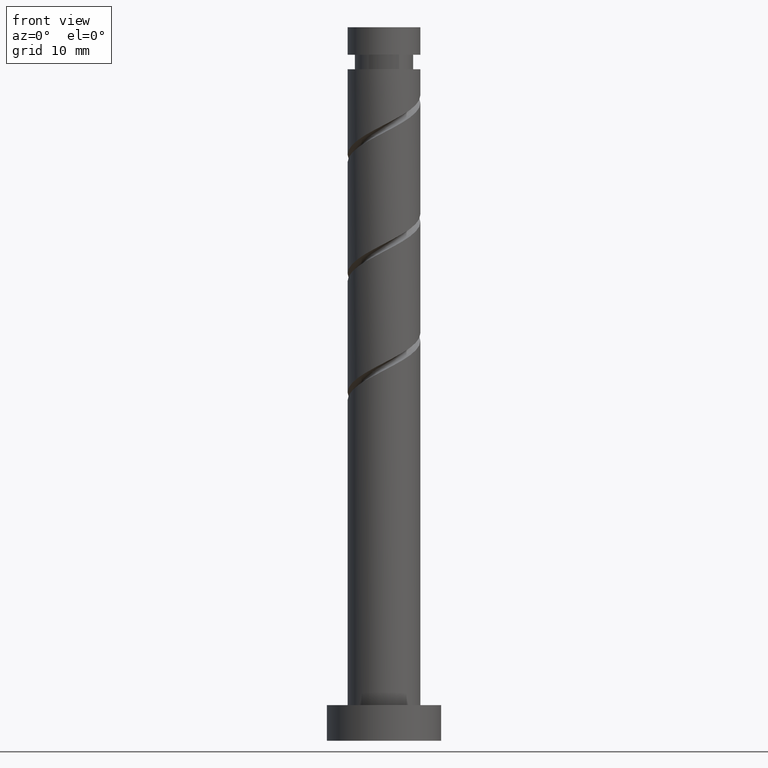
[diagram: clean part render]
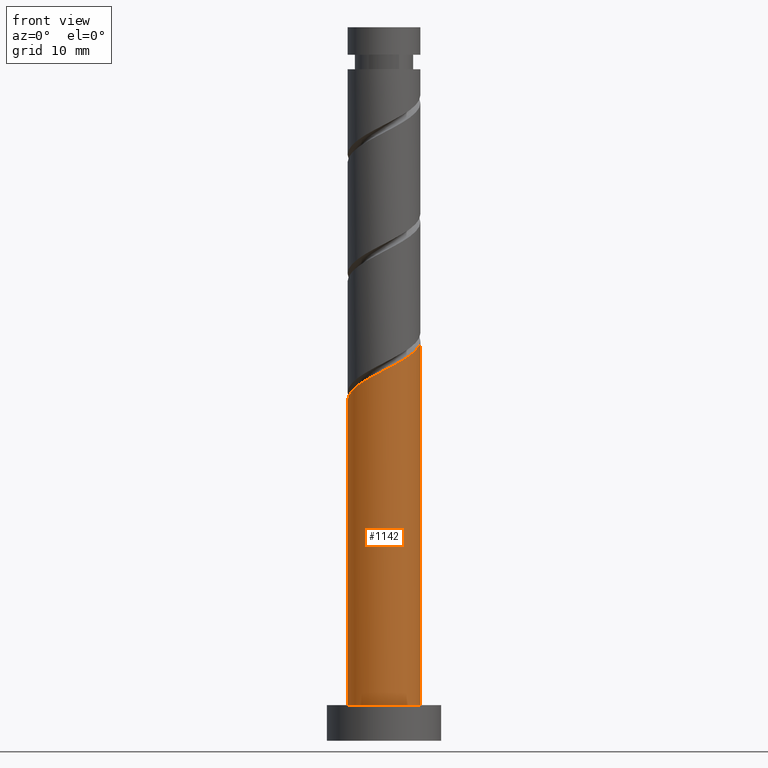
[diagram: same view with one face highlighted and labeled with its STEP entity id]
A machine part, front view. The second image highlights one B-rep face of the part: STEP entity #1142.
In plain terms, the highlighted cylindrical surface (edge-blend (fillet) strip) has radius 5.1 mm, axis along (-0, -0, -1).
Its self-contained STEP definition (entity closure, byte-faithful):
#18 = CARTESIAN_POINT ( 'NONE',  ( 5.099999999999999645, 6.245698675651500839E-16, 5.000000000000000000 ) ) ;
#70 = VECTOR ( 'NONE', #715, 1000.000000000000000 ) ;
#106 = CARTESIAN_POINT ( 'NONE',  ( -5.099999999999999645, 0.000000000000000000, 5.000000000000000000 ) ) ;
#108 = CARTESIAN_POINT ( 'NONE',  ( -5.100000000000006750, -0.06579853909330482531, 47.78180857407880211 ) ) ;
#113 = CARTESIAN_POINT ( 'NONE',  ( -1.645074290006732776, -4.910439165662275229, 51.05642386624632678 ) ) ;
#116 = CARTESIAN_POINT ( 'NONE',  ( -5.099999999999999645, 0.000000000000000000, 100.0000000000000000 ) ) ;
#120 = CARTESIAN_POINT ( 'NONE',  ( 4.835838561039003558, -1.620081915079686574, 55.22309053291296266 ) ) ;
#147 =( BOUNDED_CURVE ( )  B_SPLINE_CURVE ( 2, ( #808, #108, #904, #346, #332, #1253, #216, #1480, #1154, #113, #583, #1036, #1485, #458, #1265, #229, #707, #1163, #120, #588, #501 ),
 .UNSPECIFIED., .F., .T. ) 
 B_SPLINE_CURVE_WITH_KNOTS ( ( 3, 2, 2, 2, 2, 2, 2, 2, 2, 2, 3 ),
 ( 0.05452480538552905570, 0.05555555555555558023, 0.06944444444444441977, 0.08333333333333337034, 0.09722222222222220989, 0.1111111111111111605, 0.1250000000000000000, 0.1388888888888888395, 0.1527777777777777901, 0.1666666666666666297, 0.1795248053855290626 ),
 .UNSPECIFIED. ) 
 CURVE ( )  GEOMETRIC_REPRESENTATION_ITEM ( )  RATIONAL_B_SPLINE_CURVE ( ( 0.9071930855141262517, 0.9080659294509739743, 0.9090909090909141677, 0.8952797754656484086, 0.9090909090909141677, 0.8952797754656484086, 0.9090909090909141677, 0.8952797754656484086, 0.9090909090909141677, 0.8952797754656484086, 0.9090909090909141677, 0.8952797754656484086, 0.9090909090909141677, 0.8952797754656484086, 0.9090909090909141677, 0.8952797754656484086, 0.9090909090909141677, 0.8952797754656484086, 0.9090909090909141677, 0.8963047551055884909, 0.9071930855141264738 ) ) 
 REPRESENTATION_ITEM ( '' )  );
#216 = CARTESIAN_POINT ( 'NONE',  ( -3.820951375190252186, -3.377918084920321196, 49.66753497735741263 ) ) ;
#229 = CARTESIAN_POINT ( 'NONE',  ( 3.430027916198227000, -3.879895709089619338, 53.83420164402409824 ) ) ;
#237 = EDGE_CURVE ( 'NONE', #1312, #1189, #827, .T. ) ;
#318 = CARTESIAN_POINT ( 'NONE',  ( 5.100000000000006750, -3.742211119996870112E-15, 56.08112453347976611 ) ) ;
#332 = CARTESIAN_POINT ( 'NONE',  ( -4.745835839194866956, -1.867362361035912244, 48.74160905143149591 ) ) ;
#340 = DIRECTION ( 'NONE',  ( 1.000000000000000000, 0.000000000000000000, 0.000000000000000000 ) ) ;
#346 = CARTESIAN_POINT ( 'NONE',  ( -5.075102206204961774, -1.030543456572657890, 48.27864608846854821 ) ) ;
#347 = DIRECTION ( 'NONE',  ( 0.000000000000000000, 0.000000000000000000, 1.000000000000000000 ) ) ;
#412 = AXIS2_PLACEMENT_3D ( 'NONE', #1259, #702, #958 ) ;
#425 = CARTESIAN_POINT ( 'NONE',  ( 5.099999999999999645, 6.245698675651500839E-16, 100.0000000000000000 ) ) ;
#431 = EDGE_CURVE ( 'NONE', #1312, #852, #147, .T. ) ;
#458 = CARTESIAN_POINT ( 'NONE',  ( 1.896169435429661654, -4.819048006759587111, 52.90827571809816732 ) ) ;
#478 = EDGE_CURVE ( 'NONE', #852, #1459, #1247, .T. ) ;
#493 = CYLINDRICAL_SURFACE ( 'NONE', #412, 5.099999999999999645 ) ;
#501 = CARTESIAN_POINT ( 'NONE',  ( 5.100000000000006750, -3.742211119996870112E-15, 56.08112453347976611 ) ) ;
#583 = CARTESIAN_POINT ( 'NONE',  ( -0.7557346768694452877, -5.043695579451349609, 51.51938682920928159 ) ) ;
#588 = CARTESIAN_POINT ( 'NONE',  ( 5.100000000000006750, -0.8315772962843340776, 55.65120502111416556 ) ) ;
#590 = VECTOR ( 'NONE', #1344, 1000.000000000000000 ) ;
#628 = EDGE_LOOP ( 'NONE', ( #1343, #1239, #966, #737 ) ) ;
#702 = DIRECTION ( 'NONE',  ( -0.000000000000000000, -0.000000000000000000, -1.000000000000000000 ) ) ;
#707 = CARTESIAN_POINT ( 'NONE',  ( 3.990101162325420781, -3.176333218415438697, 54.29716460698704594 ) ) ;
#715 = DIRECTION ( 'NONE',  ( -0.000000000000000000, -0.000000000000000000, -1.000000000000000000 ) ) ;
#737 = ORIENTED_EDGE ( 'NONE', *, *, #1261, .T. ) ;
#808 = CARTESIAN_POINT ( 'NONE',  ( -5.100000000000007638, 3.674985770535848914E-15, 47.74779120014642331 ) ) ;
#827 = LINE ( 'NONE', #116, #70 ) ;
#849 = CIRCLE ( 'NONE', #1333, 5.099999999999999645 ) ;
#852 = VERTEX_POINT ( 'NONE', #318 ) ;
#904 = CARTESIAN_POINT ( 'NONE',  ( -5.098302459915178275, -0.1315751770772742579, 47.81568312550556499 ) ) ;
#958 = DIRECTION ( 'NONE',  ( -1.000000000000000000, 0.000000000000000000, 0.000000000000000000 ) ) ;
#966 = ORIENTED_EDGE ( 'NONE', *, *, #237, .T. ) ;
#1024 = CARTESIAN_POINT ( 'NONE',  ( 0.000000000000000000, 0.000000000000000000, 5.000000000000000000 ) ) ;
#1036 = CARTESIAN_POINT ( 'NONE',  ( 0.1336049362678421726, -5.176951993240429317, 51.98234979217225771 ) ) ;
#1142 = ADVANCED_FACE ( 'NONE', ( #1402 ), #493, .T. ) ;
#1154 = CARTESIAN_POINT ( 'NONE',  ( -2.435203784101233726, -4.481047035001874512, 50.59346090328333645 ) ) ;
#1163 = CARTESIAN_POINT ( 'NONE',  ( 4.550174408452618557, -2.472770727741262053, 54.76012756995002917 ) ) ;
#1189 = VERTEX_POINT ( 'NONE', #106 ) ;
#1239 = ORIENTED_EDGE ( 'NONE', *, *, #431, .F. ) ;
#1247 = LINE ( 'NONE', #425, #590 ) ;
#1253 = CARTESIAN_POINT ( 'NONE',  ( -4.416569472184775691, -2.704181265499168596, 49.20457201439447203 ) ) ;
#1259 = CARTESIAN_POINT ( 'NONE',  ( 0.000000000000000000, 0.000000000000000000, 100.0000000000000000 ) ) ;
#1261 = EDGE_CURVE ( 'NONE', #1189, #1459, #849, .T. ) ;
#1265 = CARTESIAN_POINT ( 'NONE',  ( 2.663098675813944549, -4.349471857924601892, 53.37123868106112212 ) ) ;
#1312 = VERTEX_POINT ( 'NONE', #1370 ) ;
#1333 = AXIS2_PLACEMENT_3D ( 'NONE', #1024, #347, #340 ) ;
#1343 = ORIENTED_EDGE ( 'NONE', *, *, #478, .F. ) ;
#1344 = DIRECTION ( 'NONE',  ( -0.000000000000000000, -0.000000000000000000, -1.000000000000000000 ) ) ;
#1370 = CARTESIAN_POINT ( 'NONE',  ( -5.100000000000006750, 3.674985770535848914E-15, 47.74779120014642331 ) ) ;
#1402 = FACE_OUTER_BOUND ( 'NONE', #628, .T. ) ;
#1459 = VERTEX_POINT ( 'NONE', #18 ) ;
#1480 = CARTESIAN_POINT ( 'NONE',  ( -3.225333278195734010, -4.051654904341477348, 50.13049794032041717 ) ) ;
#1485 = CARTESIAN_POINT ( 'NONE',  ( 1.014887185848752260, -4.998000000000004661, 52.44531275513519120 ) ) ;